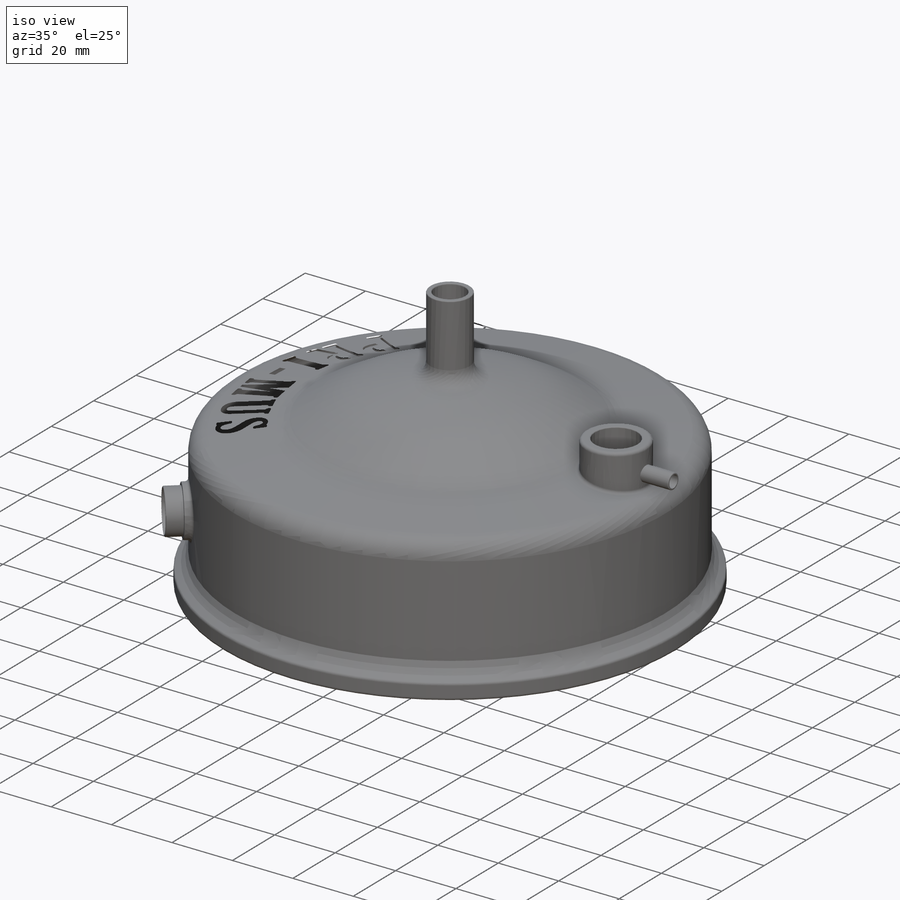
[diagram: iso view]
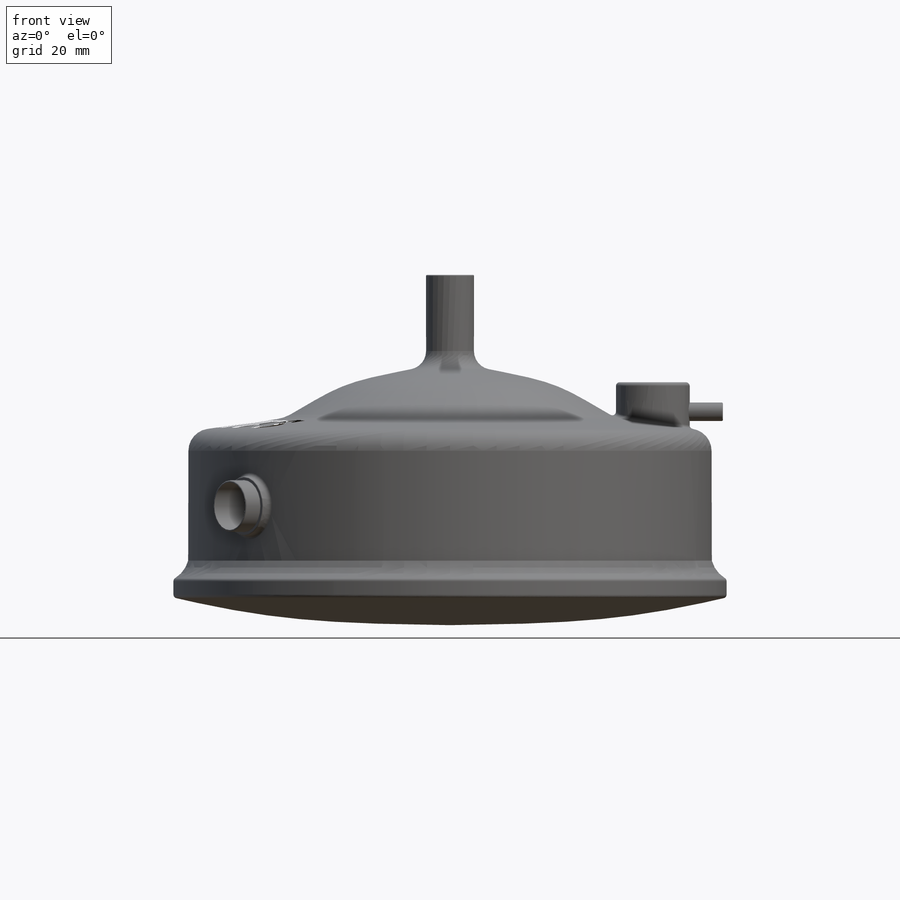
[diagram: front view]
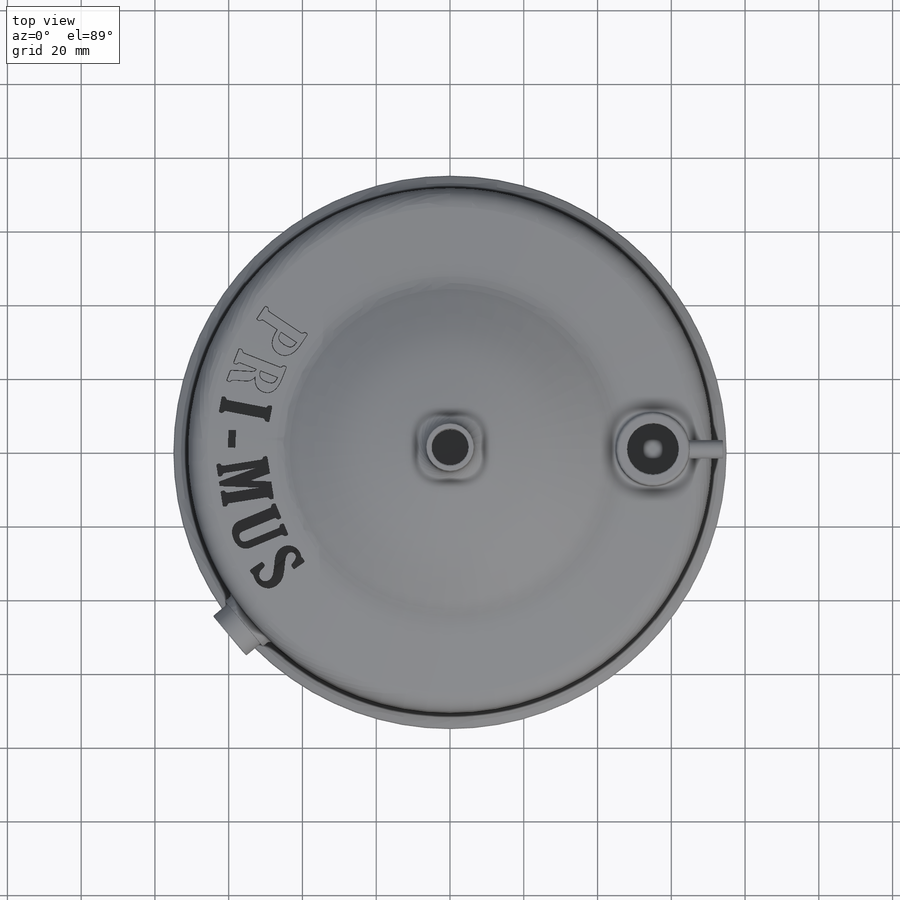
[diagram: top view]
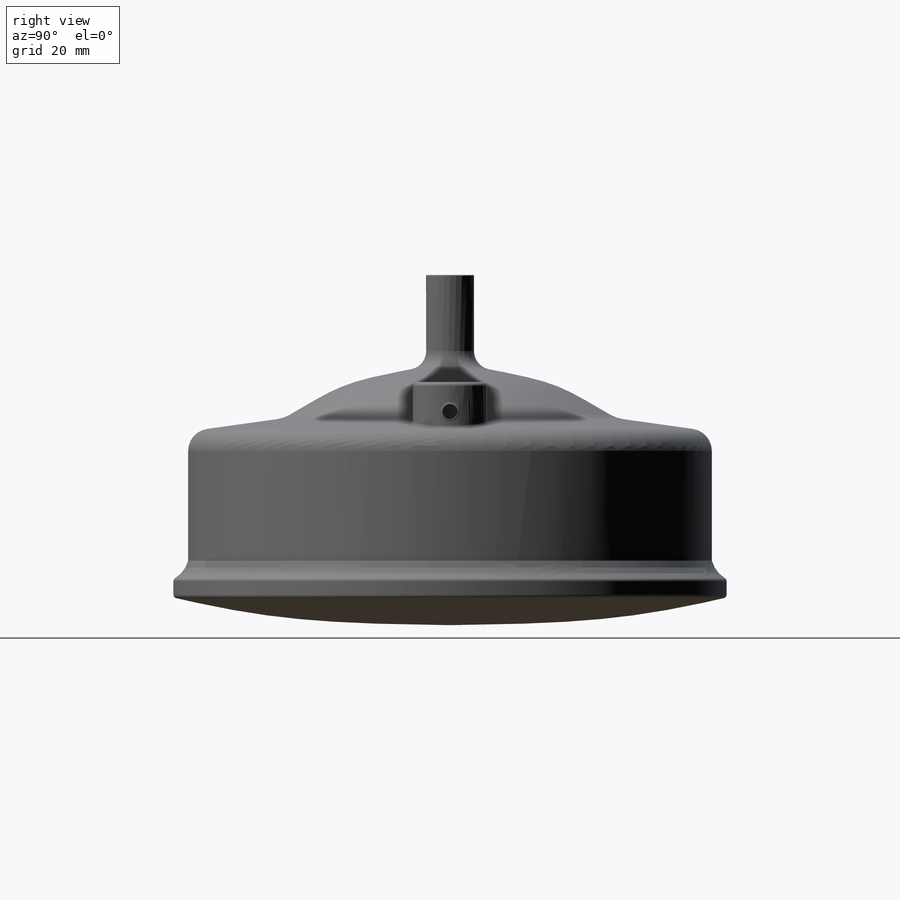
[diagram: right view]
SOLIDWORKS PART (.sldprt)
format: sldprt  version: not decoded by parser v0  size: 2,234,880 bytes
history: native  units: mm
features: fillet x12, sketch x10, plane x8, extrude x6, shell x3, cut_extrude x3, material x1, revolve x1, thread x1 (+9 scaffold rows collapsed)
feature tree (54):
  scaffold x9  (default folders/planes/origin — collapsed)
  material  "Mosaz"
  plane  "Přední rovina"
  plane  "Horní rovina"
  plane  "Pravá rovina"
  sketch  "Skica1"  dims[c1.D3=8.0mm c1.D10=6.0mm c1.D11=~80.100989mm c1.D6=10.0mm c1.D8=5.0mm c1.D16=1.0mm c1.D2=1.0mm c2.D3=5.0mm c2.D6=~15.655307mm c2.D8=10.0mm c2.D9=6.0mm c2.D1=95.0mm c2.D2=80.0mm c3.D3=15.0mm c3.D4=8.0mm c3.D5=40.0mm c3.D6=25.0mm c3.D7=6.5mm c3.D8=30.0mm c3.D2=5.0mm c4.D3=8.0mm c4.D4=40.0mm c4.D5=35.0mm c4.D6=25.0mm c4.D9=32.0mm c5.D9=98.0deg c5.D11=80.0mm c5.D12=37.0mm c5.D13=27.5mm c6.D12=37.0mm c6.D14=33.0mm c6.D15=24.0mm c6.D11=75.0mm c6.D17=77.5mm c6.D18=9.2mm c6.D19=86.7mm c6.D1=95.0mm c6.D2=~24.752631mm c7.D1=95.0mm c7.D2=~24.752631mm c7.D4=6.5mm c7.D5=10.5mm c7.D6=71.0mm c7.D7=~45.139048mm c7.D8=~101.536959deg c7.D10=~38.86548mm c7.D11=42.5mm c7.D12=71.0mm c7.D13=~82.228963mm c7.D14=~87.493142mm]
  revolve  "Rotovat1"  Angle=360deg
  plane  "Rovina2"
  sketch  "Skica2"  dims[D1=20.0mm D3=15.0mm D2=55.0mm]
  extrude  "Přidat vysunutím1"  [1 undecoded]
  thread  "Kosmetický závit9"  Diameter=5mm  [1 undecoded]
  shell  "Skořepina12"  [1 undecoded]
  shell  "Kosmetický závit8"  Thickness=7mm
  fillet  "Zaoblit1"  Radius=1mm
  fillet  "Zaoblit2"  Radius=1mm
  plane  "Rovina3"  Offset=67mm
  sketch  "Skica3"  dims[D1=5.0mm D2=7.0mm]
  extrude  "Přidat vysunutím2"  Depth=7mm
  sketch  "Skica4"  dims[D1=4.0mm]
  cut_extrude  "Odebrat vysunutím1"  [1 undecoded]
  plane  "Rovina5"
  sketch  "Skica5"  dims[D1=16.0mm D2=15.0mm]
  extrude  "Přidat vysunutím3"  Depth=2mm
  fillet  "Zaoblit48"  Radius=1mm
  sketch  "Skica7"  dims[D1=14.0mm]
  extrude  "Přidat vysunutím4"  [1 undecoded]
  shell  "Kosmetický závit2"  Thickness=6mm
  fillet  "Zaoblit49"  Radius=0.2mm
  fillet  "Zaoblit50"  Radius=0.1mm
  fillet  "Zaoblit51"  Radius=0.3mm
  fillet  "Zaoblit52"  Radius=0.3mm
  fillet  "Zaoblit53"  Radius=0.3mm
  sketch  "Skica8"  dims[D1=13.0mm]
  cut_extrude  "Odebrat vysunutím3"  [1 undecoded]
  fillet  "Zaoblit54"  Radius=0.3mm
  plane  "Rovina8"  Offset=10mm
  sketch  "Skica15"
  cut_extrude  "Odebrat vysunutím4"  Depth=0.5mm
  fillet  "Zaoblit56"  Radius=0.2mm
  plane  "Rovina9"  Offset=10mm
  sketch  "Skica17"  dims[D1=13.0mm D2=14.0mm]
  extrude  "Přidat vysunutím6"  Depth=40mm
  fillet  "Zaoblit57"  Radius=1mm
  sketch  "Skica18"  dims[D1=14.0mm D2=2.0mm]
  extrude  "Přidat vysunutím7"  Depth=2mm
  fillet  "Zaoblit58"  Radius=1mm
decode coverage: 30 of 36 modeling features carry decoded parameters
note: ~ marks probable driven/reference dimensions
note: 6 parameter values undecoded
summary: no parameter record found for 5 features
note: suppression state not decoded; provenance and decode notes live in map.json
